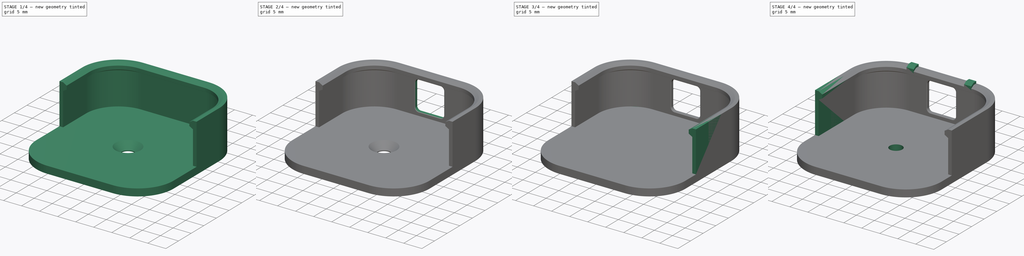
[diagram: build sequence overview — one tinted view per stage of 4, left to right]
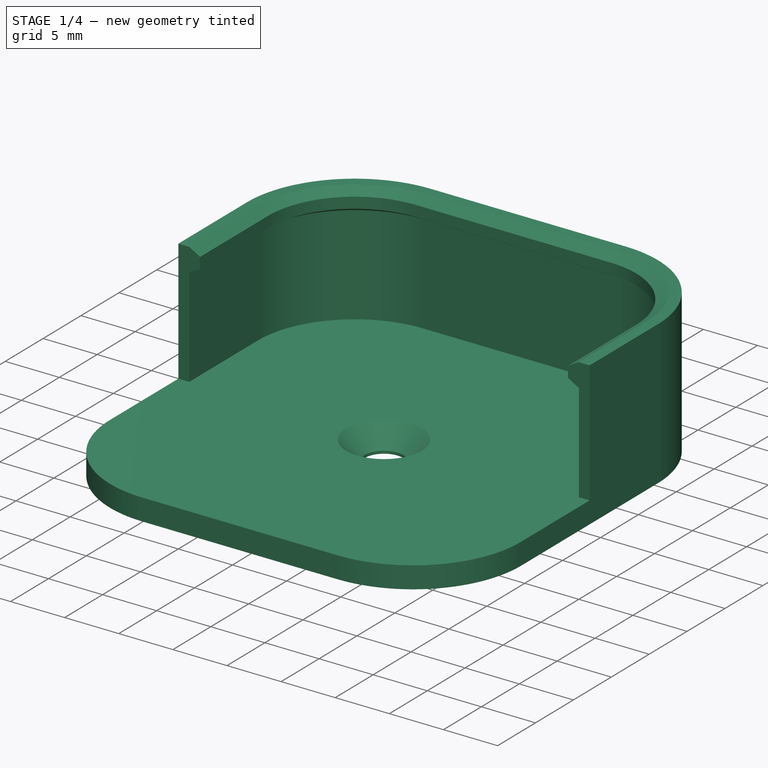
[diagram: stage 1 of 4 — iso view after this stage's code; geometry added in this stage tinted green]
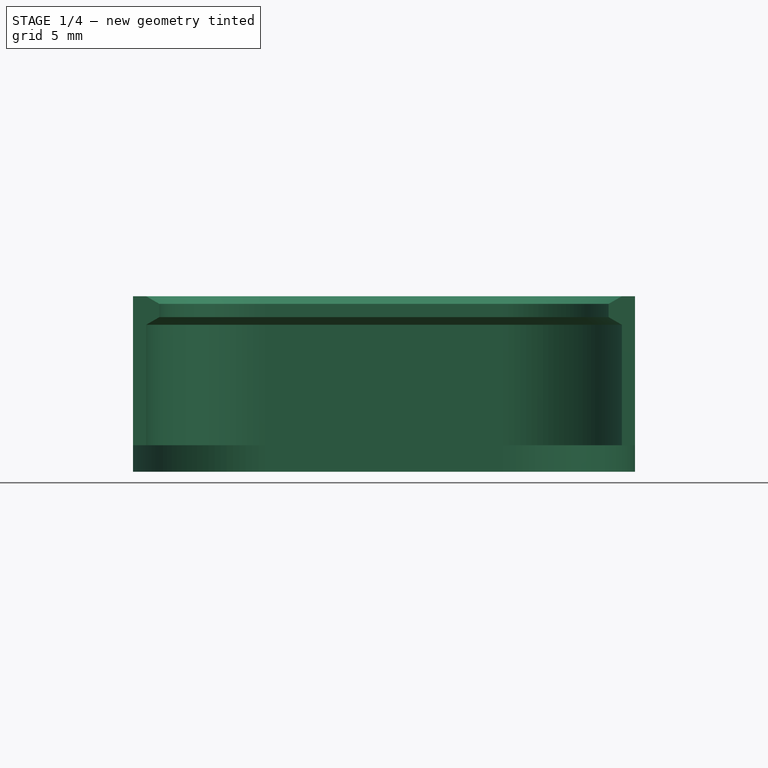
[diagram: stage 1 of 4 — front view after this stage's code; geometry added in this stage tinted green]
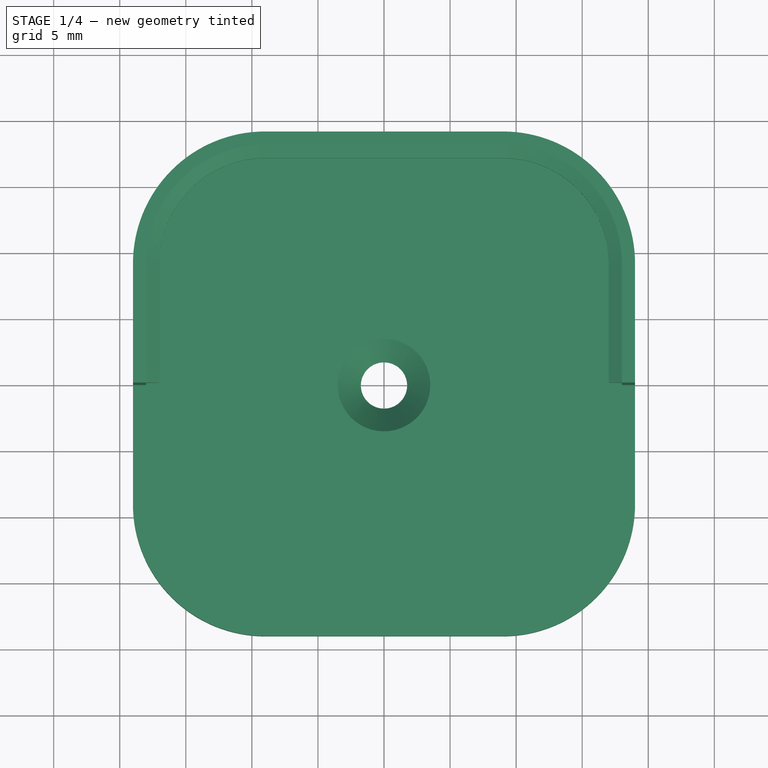
[diagram: stage 1 of 4 — top view after this stage's code; geometry added in this stage tinted green]
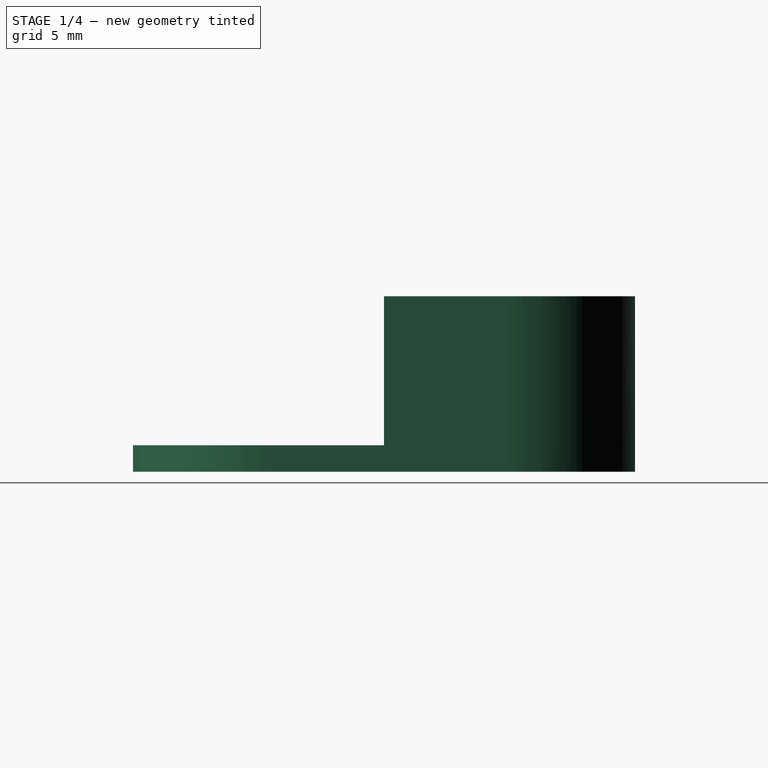
[diagram: stage 1 of 4 — right view after this stage's code; geometry added in this stage tinted green]
FCSTD DOCUMENT  (FreeCAD 0.19R22756 (Git))
Label: mi-temp-sensor-holder
License: All rights reserved
LicenseURL: http://en.wikipedia.org/wiki/All_rights_reserved
objects: Sketcher::SketchObject×9, PartDesign::Pad×4, PartDesign::Fillet×4, PartDesign::Mirrored×2, PartDesign::Hole×2, PartDesign::Body×2, PartDesign::Plane×1, PartDesign::AdditivePipe×1, PartDesign::Pocket×1
note: 38 computed .brp shape members not serialized (recipe doc carries the construction recipe); baked Part::Feature solids carry a one-line shape summary decoded from their .brp

FEATURE [PartDesign::Body] Body
  Group = -> [Sketch,Pad,Fillet,Sketch001,Pad001,Mirrored,Sketch002,Hole,DatumPlane,Sketch003,Pad002,Mirrored001]
  Origin = -> Origin
  Tip = -> Mirrored001
FEATURE [Sketcher::SketchObject] Sketch006
  MapMode = 5
  Support = -> [XY_Plane001]
  expr: Constraints[11] = Constraints[8] / 2
  expr: Constraints[10] = -Constraints[8] / 2
  expr: Constraints[9] = Constraints[8]
  sketch-geometry (4):
    g0: LineSegment StartX=-19 StartY=-19 StartZ=0 EndX=19 EndY=-19 EndZ=0
    g1: LineSegment StartX=19 StartY=-19 StartZ=0 EndX=19 EndY=19 EndZ=0
    g2: LineSegment StartX=19 StartY=19 StartZ=0 EndX=-19 EndY=19 EndZ=0
    g3: LineSegment StartX=-19 StartY=19 StartZ=0 EndX=-19 EndY=-19 EndZ=0
  constraints (12):
    c: Coincident(g0,g1)
    c: Coincident(g1,g2)
    c: Coincident(g2,g3)
    c: Coincident(g3,g0)
    c: Horizontal(g0)
    c: Horizontal(g2)
    c: Vertical(g1)
    c: Vertical(g3)
    c: Distance(g2) = 38
    c: Distance(g1) = 38
    c: DistanceX(g-2,g2) = -19
    c: Distance(g-1,g0) = 19
FEATURE [PartDesign::Pad] Pad005
  Direction = (1,1,1)
  Length = 2
  Length2 = 100
  Profile = -> Sketch006
  Type = 0
FEATURE [PartDesign::Fillet] Fillet001
  Base = -> Pad005 [Edge2,Edge1,Edge5,Edge8]
  BaseFeature = -> Pad005
  Radius = 10
  SupportTransform = false
FEATURE [Sketcher::SketchObject] Sketch004
  ExternalGeometry = -> [Fillet001]
  MapMode = 5
  Placement = pos=(0,0,0) rot=(1,0,0;1.5708rad)
  Support = -> [XZ_Plane001]
  sketch-geometry (7):
    g0: LineSegment StartX=19 StartY=2 StartZ=0 EndX=19 EndY=13.2774 EndZ=0
    g1: LineSegment StartX=19 StartY=13.2774 StartZ=0 EndX=18 EndY=13.2774 EndZ=0
    g2: LineSegment StartX=18 StartY=13.2774 StartZ=0 EndX=17 EndY=12.7 EndZ=0
    g3: LineSegment StartX=17 StartY=12.7 StartZ=0 EndX=17 EndY=11.7 EndZ=0
    g4: LineSegment StartX=17 StartY=11.7 StartZ=0 EndX=18 EndY=11.1226 EndZ=0
    g5: LineSegment StartX=18 StartY=11.1226 StartZ=0 EndX=18 EndY=2 EndZ=0
    g6: LineSegment StartX=18 StartY=2 StartZ=0 EndX=19 EndY=2 EndZ=0
  constraints (20):
    c: Coincident(g0,g-4)
    c: Vertical(g0)
    c: Coincident(g1,g0)
    c: Horizontal(g1)
    c: Coincident(g3,g2)
    c: Vertical(g3)
    c: Coincident(g4,g3)
    c: Coincident(g5,g4)
    c: PointOnObject(g5,g-3)
    c: Vertical(g5)
    c: Coincident(g6,g5)
    c: Coincident(g6,g0)
    c: Distance(g4,g0) = 1
    c: Distance(g3,g-3) = 9.7
    c: Distance(g3) = 1
    c: Angle(g3,g2) = 2.0944
    c: Coincident(g1,g2)
    c: DistanceX(g2,g1) = 1
    c: Equal(g4,g2)
    c: Vertical(g1,g4)
FEATURE [Sketcher::SketchObject] Sketch007
  ExternalGeometry = -> [Fillet001,Sketch004]
  MapMode = 5
  Placement = pos=(0,0,2) rot=(0,0,1;0rad)
  Support = -> [Fillet001]
  sketch-geometry (5):
    g0: LineSegment StartX=19 StartY=-3.6e-15 StartZ=0 EndX=19 EndY=9 EndZ=0
    g1: ArcOfCircle CenterX=9 CenterY=9 CenterZ=0 NormalX=0 NormalY=0 NormalZ=1 AngleXU=0 Radius=10 StartAngle=-9e-16 EndAngle=1.5708
    g2: LineSegment StartX=9 StartY=19 StartZ=0 EndX=-9 EndY=19 EndZ=0
    g3: ArcOfCircle CenterX=-9 CenterY=9 CenterZ=0 NormalX=0 NormalY=0 NormalZ=1 AngleXU=0 Radius=10 StartAngle=1.5708 EndAngle=3.14159
    g4: LineSegment StartX=-19 StartY=9 StartZ=0 EndX=-19 EndY=-3.6e-15 EndZ=0
  constraints (13):
    c: Coincident(g0,g-8)
    c: Coincident(g0,g-4)
    c: Coincident(g1,g-4)
    c: Coincident(g1,g0)
    c: Coincident(g1,g-5)
    c: Coincident(g2,g1)
    c: Coincident(g2,g-6)
    c: Coincident(g3,g-6)
    c: Coincident(g3,g2)
    c: Coincident(g3,g-7)
    c: Coincident(g4,g3)
    c: PointOnObject(g4,g-7)
    c: Horizontal(g4,g0)
FEATURE [PartDesign::AdditivePipe] AdditivePipe
  AuxilleryCurvelinear = true
  AuxillerySpineTangent = false
  BaseFeature = -> Fillet001
  Binormal = (0,0,0)
  Mode = 0
  Profile = -> Sketch004
  Spine = -> Sketch007
  SpineTangent = false
  Transformation = 0
  Transition = 0
FEATURE [Sketcher::SketchObject] Sketch008
  MapMode = 5
  Placement = pos=(0,0,2) rot=(0,0,1;0rad)
  Support = -> [AdditivePipe]
  sketch-geometry (1):
    g0: Circle CenterX=0 CenterY=0 CenterZ=0 NormalX=0 NormalY=0 NormalZ=1 AngleXU=0 Radius=1.5
  constraints (2):
    c: Coincident(g0,g-1)
    c: Diameter(g0) = 3
FEATURE [PartDesign::Hole] Hole001
  BaseFeature = -> AdditivePipe
  Depth = 4.13
  DepthType = 0
  Diameter = 3.5
  DrillPoint = 1
  DrillPointAngle = 118
  HoleCutCountersinkAngle = 90
  HoleCutDepth = 0
  HoleCutDiameter = 7
  HoleCutType = 2
  ModelActualThread = false
  Profile = -> Sketch008
  Tapered = false
  TaperedAngle = 90
  ThreadAngle = 0
  ThreadClass = 0
  ThreadCutOffInner = 0
  ThreadCutOffOuter = 0
  ThreadDirection = 0
  ThreadFit = 0
  ThreadPitch = 0
  ThreadSize = 0
  ThreadType = 0
  Threaded = false
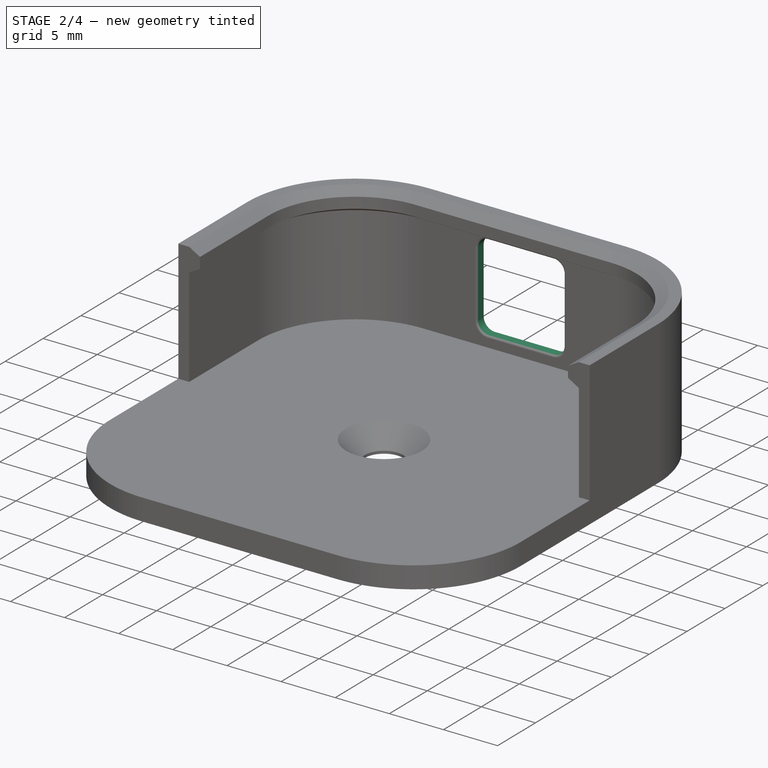
[diagram: stage 2 of 4 — iso view after this stage's code; geometry added in this stage tinted green]
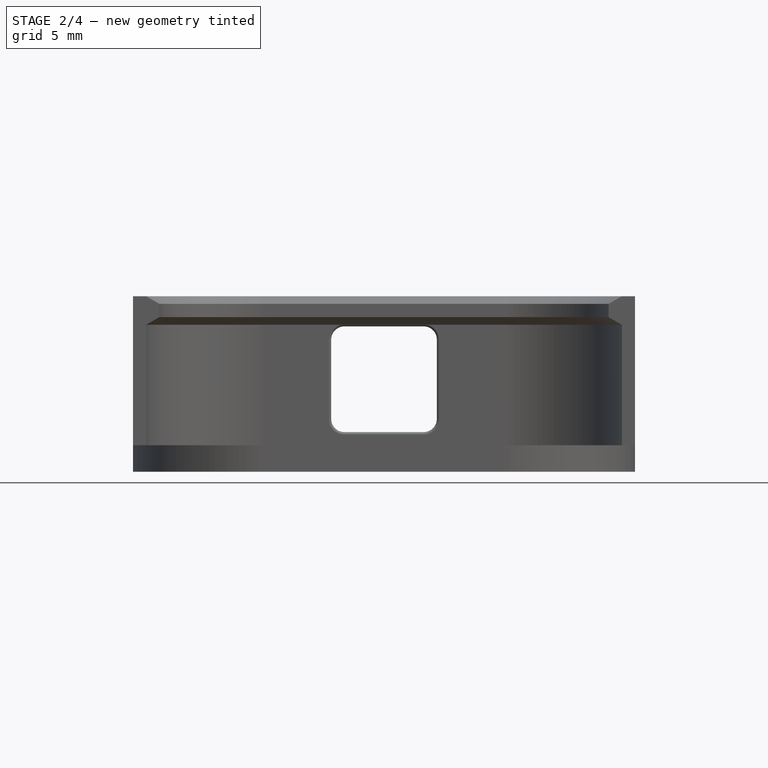
[diagram: stage 2 of 4 — front view after this stage's code; geometry added in this stage tinted green]
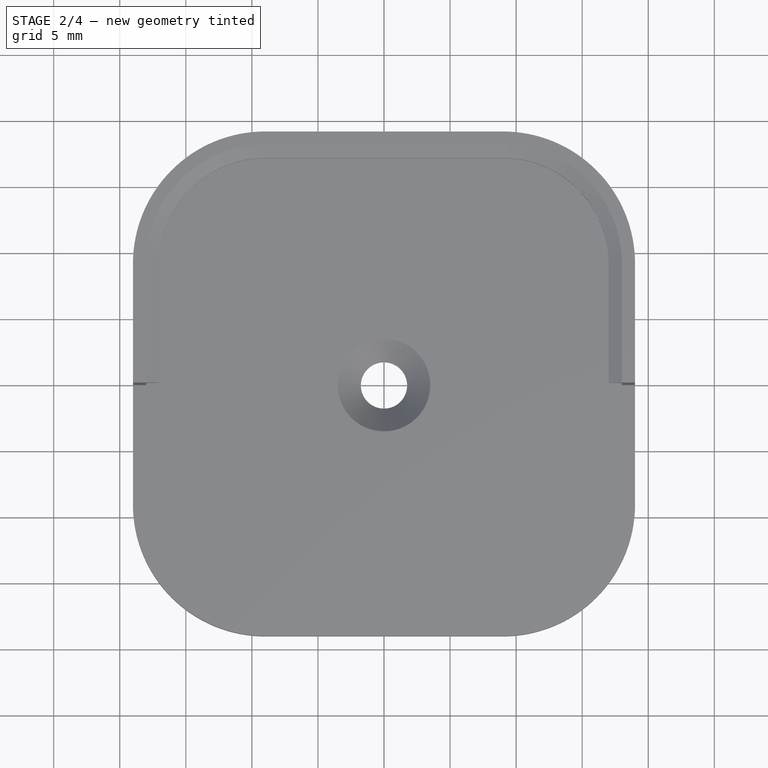
[diagram: stage 2 of 4 — top view after this stage's code; geometry added in this stage tinted green]
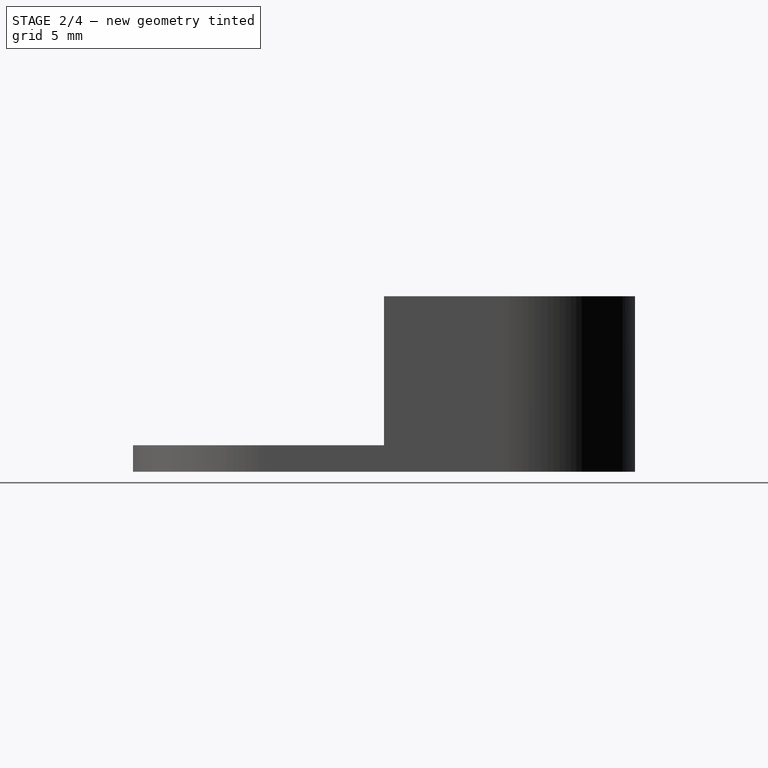
[diagram: stage 2 of 4 — right view after this stage's code; geometry added in this stage tinted green]
FEATURE [Sketcher::SketchObject] Sketch009
  ExternalGeometry = -> [Hole001]
  MapMode = 5
  Placement = pos=(0,18,0) rot=(1,0,0;1.5708rad)
  Support = -> [Hole001]
  expr: Constraints[10] = -Constraints[9] / 2
  sketch-geometry (4):
    g0: LineSegment StartX=-4 StartY=3 StartZ=0 EndX=4 EndY=3 EndZ=0
    g1: LineSegment StartX=4 StartY=3 StartZ=0 EndX=4 EndY=11 EndZ=0
    g2: LineSegment StartX=4 StartY=11 StartZ=0 EndX=-4 EndY=11 EndZ=0
    g3: LineSegment StartX=-4 StartY=11 StartZ=0 EndX=-4 EndY=3 EndZ=0
  constraints (12):
    c: Coincident(g0,g1)
    c: Coincident(g1,g2)
    c: Coincident(g2,g3)
    c: Coincident(g3,g0)
    c: Horizontal(g0)
    c: Horizontal(g2)
    c: Vertical(g1)
    c: Vertical(g3)
    c: Distance(g2) = 8
    c: Distance(g1) = 8
    c: DistanceX(g-2,g0) = -4
    c: Distance(g0,g-6) = 1
FEATURE [PartDesign::Pocket] Pocket
  BaseFeature = -> Hole001
  Length = 0
  Length2 = 100
  Profile = -> Sketch009
  Type = 1
FEATURE [PartDesign::Fillet] Fillet002
  Base = -> Pocket [Edge98,Edge95,Edge97,Edge96]
  BaseFeature = -> Pocket
  Radius = 1
  SupportTransform = false
FEATURE [PartDesign::Fillet] Fillet003
  Base = -> Fillet002 [Edge1,Edge2,Edge4,Edge6,Edge8,Edge7,Edge5,Edge3,Edge21,Edge17,Edge15,Edge19,Edge23,Edge27,Edge28,Edge25]
  BaseFeature = -> Fillet002
  Radius = 0.2
  SupportTransform = false
FEATURE [PartDesign::Body] Body001
  Group = -> [Sketch006,Pad005,Fillet001,Sketch004,Sketch007,AdditivePipe,Sketch008,Hole001,Sketch009,Pocket,Fillet002,Fillet003]
  Origin = -> Origin001
  Tip = -> Fillet003
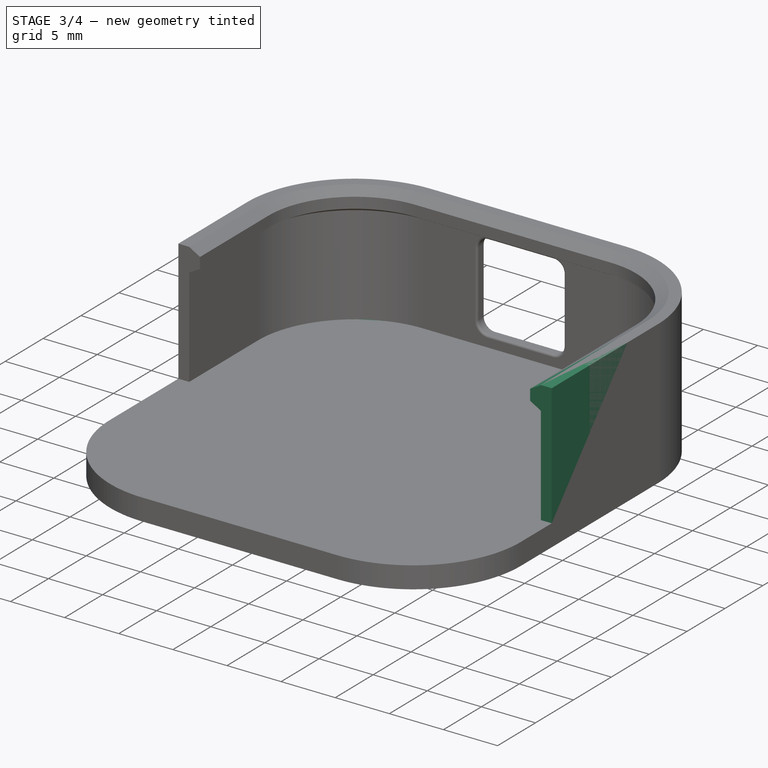
[diagram: stage 3 of 4 — iso view after this stage's code; geometry added in this stage tinted green]
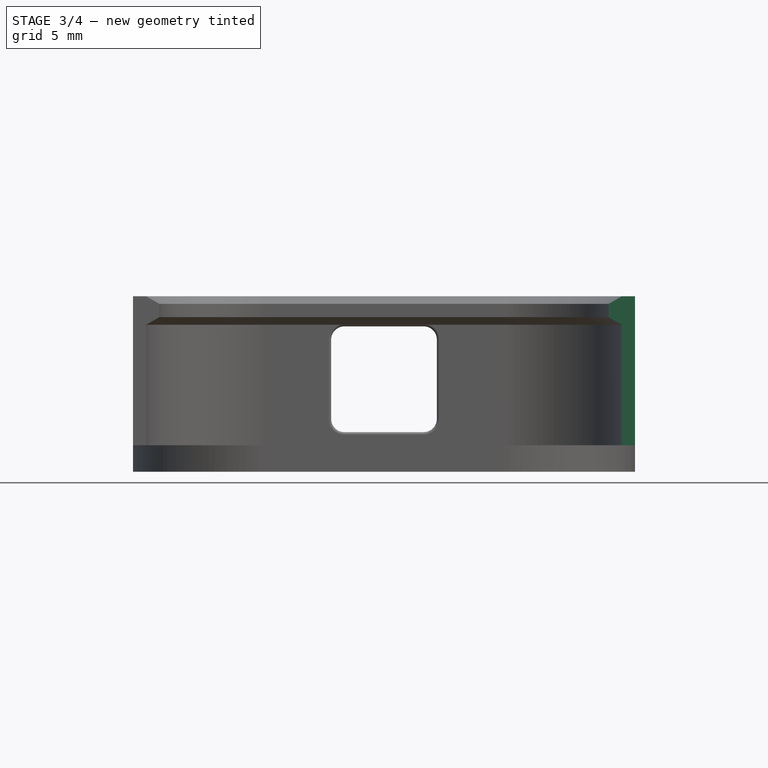
[diagram: stage 3 of 4 — front view after this stage's code; geometry added in this stage tinted green]
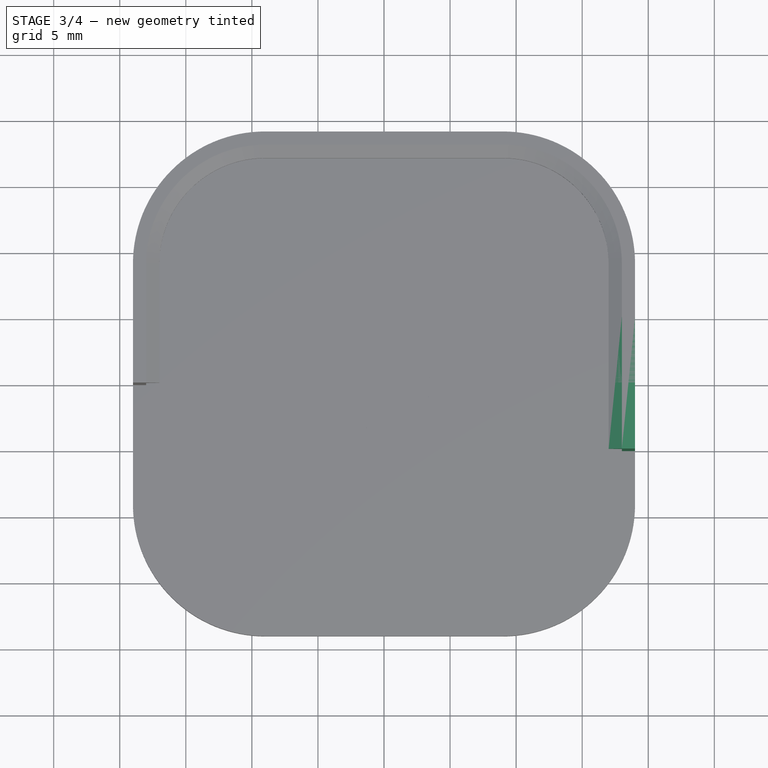
[diagram: stage 3 of 4 — top view after this stage's code; geometry added in this stage tinted green]
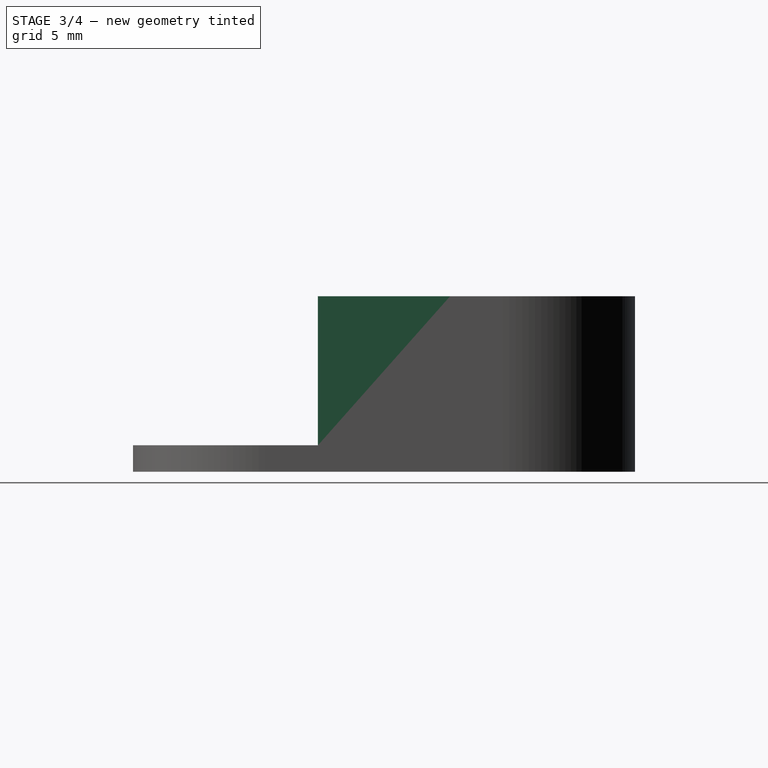
[diagram: stage 3 of 4 — right view after this stage's code; geometry added in this stage tinted green]
FEATURE [Sketcher::SketchObject] Sketch
  MapMode = 5
  Support = -> [XY_Plane]
  expr: Constraints[9] = Constraints[8]
  expr: Constraints[10] = -Constraints[8] / 2
  expr: Constraints[11] = Constraints[8] / 2
  sketch-geometry (4):
    g0: LineSegment StartX=-19 StartY=-19 StartZ=0 EndX=19 EndY=-19 EndZ=0
    g1: LineSegment StartX=19 StartY=-19 StartZ=0 EndX=19 EndY=19 EndZ=0
    g2: LineSegment StartX=19 StartY=19 StartZ=0 EndX=-19 EndY=19 EndZ=0
    g3: LineSegment StartX=-19 StartY=19 StartZ=0 EndX=-19 EndY=-19 EndZ=0
  constraints (12):
    c: Coincident(g0,g1)
    c: Coincident(g1,g2)
    c: Coincident(g2,g3)
    c: Coincident(g3,g0)
    c: Horizontal(g0)
    c: Horizontal(g2)
    c: Vertical(g1)
    c: Vertical(g3)
    c: Distance(g2) = 38
    c: Distance(g1) = 38
    c: DistanceX(g-2,g2) = -19
    c: Distance(g-1,g0) = 19
FEATURE [PartDesign::Pad] Pad
  Direction = (1,1,1)
  Length = 2
  Length2 = 100
  Profile = -> Sketch
  Type = 0
FEATURE [PartDesign::Fillet] Fillet
  Base = -> Pad [Edge2,Edge1,Edge5,Edge8]
  BaseFeature = -> Pad
  Radius = 10
  SupportTransform = false
FEATURE [Sketcher::SketchObject] Sketch001
  ExternalGeometry = -> [Fillet]
  MapMode = 5
  Placement = pos=(0,0,0) rot=(1,0,0;1.5708rad)
  Support = -> [XZ_Plane]
  sketch-geometry (7):
    g0: LineSegment StartX=19 StartY=2 StartZ=0 EndX=19 EndY=13.2774 EndZ=0
    g1: LineSegment StartX=19 StartY=13.2774 StartZ=0 EndX=18 EndY=13.2774 EndZ=0
    g2: LineSegment StartX=18 StartY=13.2774 StartZ=0 EndX=17 EndY=12.7 EndZ=0
    g3: LineSegment StartX=17 StartY=12.7 StartZ=0 EndX=17 EndY=11.7 EndZ=0
    g4: LineSegment StartX=17 StartY=11.7 StartZ=0 EndX=18 EndY=11.1226 EndZ=0
    g5: LineSegment StartX=18 StartY=11.1226 StartZ=0 EndX=18 EndY=2 EndZ=0
    g6: LineSegment StartX=18 StartY=2 StartZ=0 EndX=19 EndY=2 EndZ=0
  constraints (20):
    c: Coincident(g0,g-4)
    c: Vertical(g0)
    c: Coincident(g1,g0)
    c: Horizontal(g1)
    c: Coincident(g3,g2)
    c: Vertical(g3)
    c: Coincident(g4,g3)
    c: Coincident(g5,g4)
    c: PointOnObject(g5,g-3)
    c: Vertical(g5)
    c: Coincident(g6,g5)
    c: Coincident(g6,g0)
    c: Distance(g4,g0) = 1
    c: Distance(g3,g-3) = 9.7
    c: Distance(g3) = 1
    c: Angle(g3,g2) = 2.0944
    c: Coincident(g1,g2)
    c: DistanceX(g2,g1) = 1
    c: Equal(g4,g2)
    c: Vertical(g1,g4)
FEATURE [PartDesign::Pad] Pad001
  BaseFeature = -> Fillet
  Direction = (1,1,1)
  Length = 10
  Length2 = 100
  Midplane = true
  Profile = -> Sketch001
  Type = 0
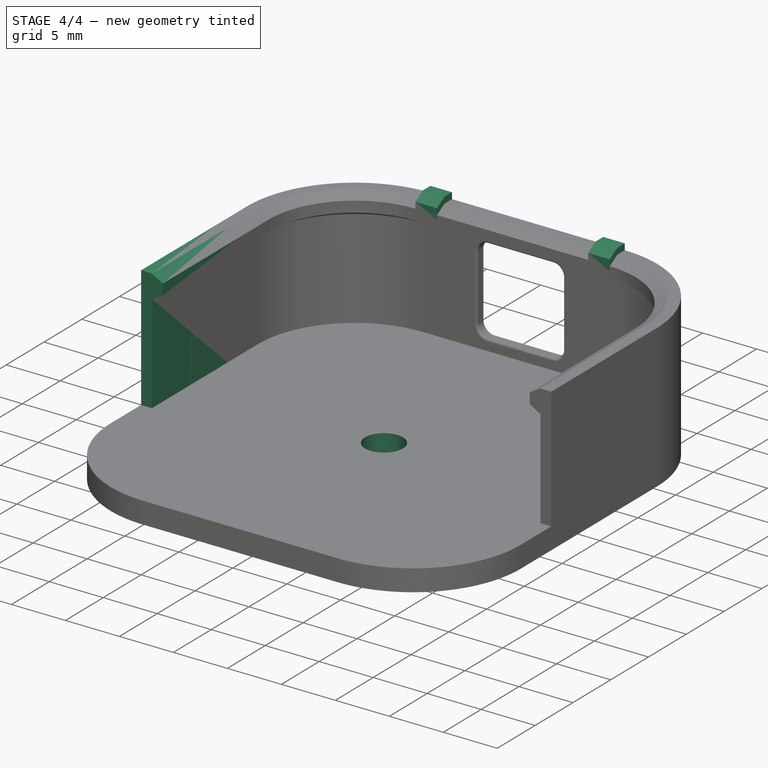
[diagram: stage 4 of 4 — iso view after this stage's code; geometry added in this stage tinted green]
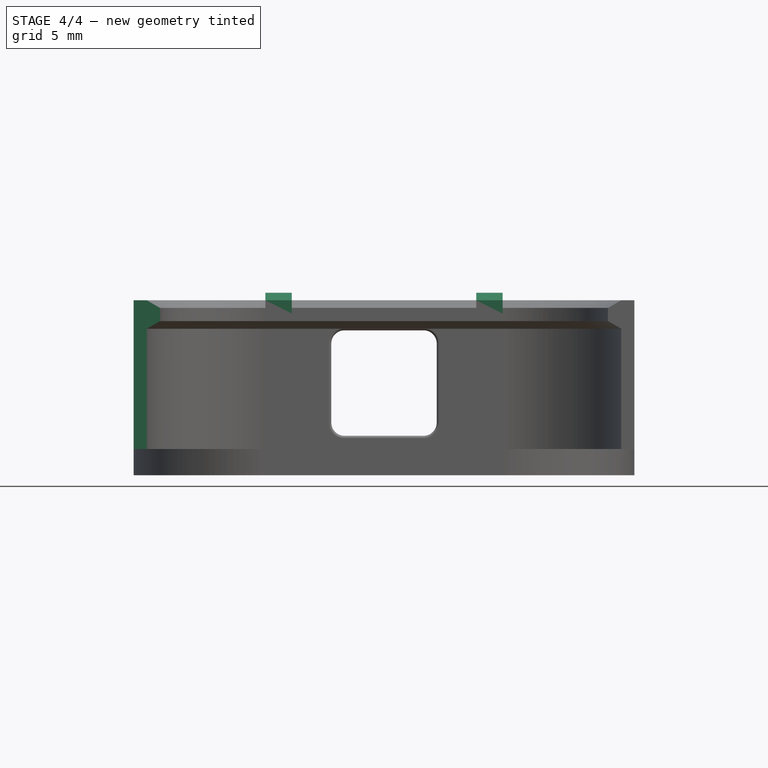
[diagram: stage 4 of 4 — front view after this stage's code; geometry added in this stage tinted green]
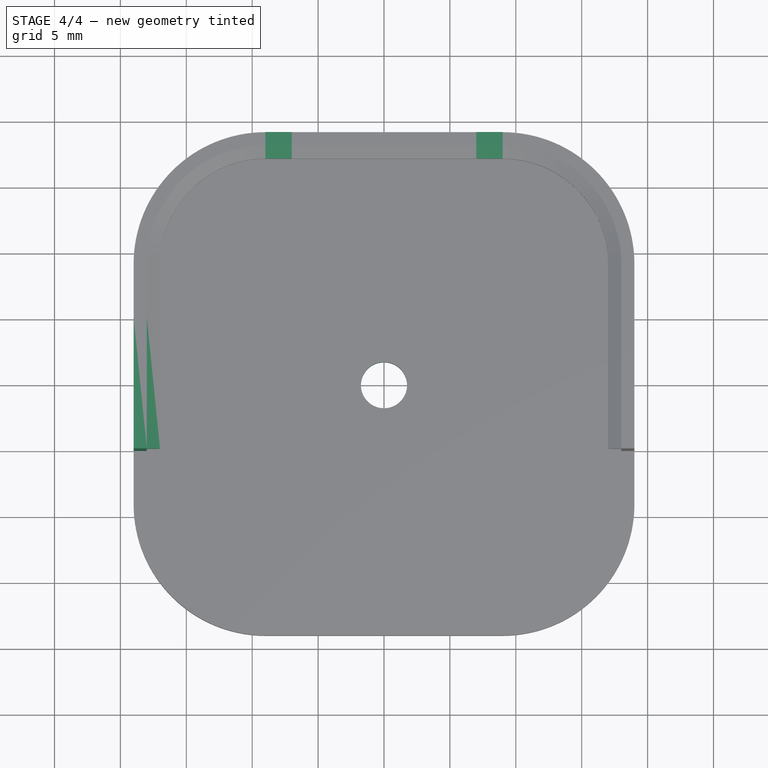
[diagram: stage 4 of 4 — top view after this stage's code; geometry added in this stage tinted green]
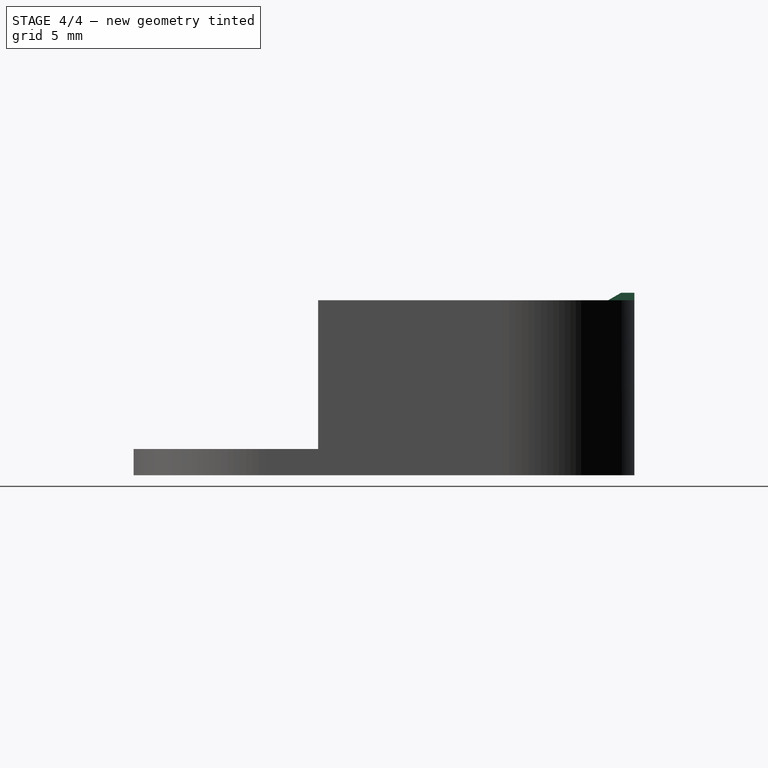
[diagram: stage 4 of 4 — right view after this stage's code; geometry added in this stage tinted green]
FEATURE [PartDesign::Mirrored] Mirrored
  BaseFeature = -> Pad001
  MirrorPlane = -> YZ_Plane
  Originals = -> [Pad001]
FEATURE [Sketcher::SketchObject] Sketch002
  MapMode = 5
  Placement = pos=(0,0,2) rot=(0,0,1;0rad)
  Support = -> [Mirrored]
  sketch-geometry (1):
    g0: Circle CenterX=0 CenterY=0 CenterZ=0 NormalX=0 NormalY=0 NormalZ=1 AngleXU=0 Radius=1.5
  constraints (2):
    c: Coincident(g0,g-1)
    c: Diameter(g0) = 3
FEATURE [PartDesign::Hole] Hole
  BaseFeature = -> Mirrored
  Depth = 4.125
  DepthType = 0
  Diameter = 3.5
  DrillPoint = 1
  DrillPointAngle = 118
  HoleCutCountersinkAngle = 90
  HoleCutDepth = 0
  HoleCutDiameter = 7
  HoleCutType = 0
  ModelActualThread = false
  Profile = -> Sketch002
  Tapered = false
  TaperedAngle = 90
  ThreadAngle = 0
  ThreadClass = 0
  ThreadCutOffInner = 0
  ThreadCutOffOuter = 0
  ThreadDirection = 0
  ThreadFit = 0
  ThreadPitch = 0
  ThreadSize = 0
  ThreadType = 0
  Threaded = false
FEATURE [PartDesign::Plane] DatumPlane
  AttachmentOffset = pos=(0,0,8) rot=(0,0,1;0rad)
  Length = 60
  MapMode = 5
  Placement = pos=(8,-1.8e-15,1.8e-15) rot=(0.57735,0.57735,0.57735;2.0944rad)
  ResizeMode = 0
  Support = -> [YZ_Plane]
  Width = 60
FEATURE [Sketcher::SketchObject] Sketch003
  ExternalGeometry = -> [Hole]
  MapMode = 5
  Placement = pos=(8,-1.8e-15,1.8e-15) rot=(0.57735,0.57735,0.57735;2.0944rad)
  Support = -> [DatumPlane]
  sketch-geometry (7):
    g0: LineSegment StartX=19 StartY=2 StartZ=0 EndX=19 EndY=13.8547 EndZ=0
    g1: LineSegment StartX=19 StartY=13.8547 StartZ=0 EndX=18 EndY=13.8547 EndZ=0
    g2: LineSegment StartX=18 StartY=13.8547 StartZ=0 EndX=17 EndY=13.2774 EndZ=0
    g3: LineSegment StartX=17 StartY=13.2774 StartZ=0 EndX=17 EndY=12.2774 EndZ=0
    g4: LineSegment StartX=17 StartY=12.2774 StartZ=0 EndX=18 EndY=11.7 EndZ=0
    g5: LineSegment StartX=18 StartY=11.7 StartZ=0 EndX=18 EndY=2 EndZ=0
    g6: LineSegment StartX=18 StartY=2 StartZ=0 EndX=19 EndY=2 EndZ=0
  constraints (20):
    c: Coincident(g0,g-4)
    c: Vertical(g0)
    c: Coincident(g1,g0)
    c: Horizontal(g1)
    c: Coincident(g2,g1)
    c: Coincident(g3,g2)
    c: Vertical(g3)
    c: Coincident(g4,g3)
    c: Coincident(g5,g4)
    c: PointOnObject(g5,g-3)
    c: Vertical(g5)
    c: Coincident(g6,g5)
    c: Coincident(g6,g0)
    c: Distance(g5) = 9.7
    c: Distance(g4,g0) = 1
    c: Distance(g3) = 1
    c: DistanceX(g2,g1) = 1
    c: Angle(g3,g2) = 2.0944
    c: Vertical(g4,g1)
    c: Equal(g2,g4)
FEATURE [PartDesign::Pad] Pad002
  BaseFeature = -> Hole
  Direction = (1,1,1)
  Length = 2
  Length2 = 100
  Midplane = true
  Profile = -> Sketch003
  Type = 0
FEATURE [PartDesign::Mirrored] Mirrored001
  BaseFeature = -> Pad002
  MirrorPlane = -> YZ_Plane
  Originals = -> [Pad002]
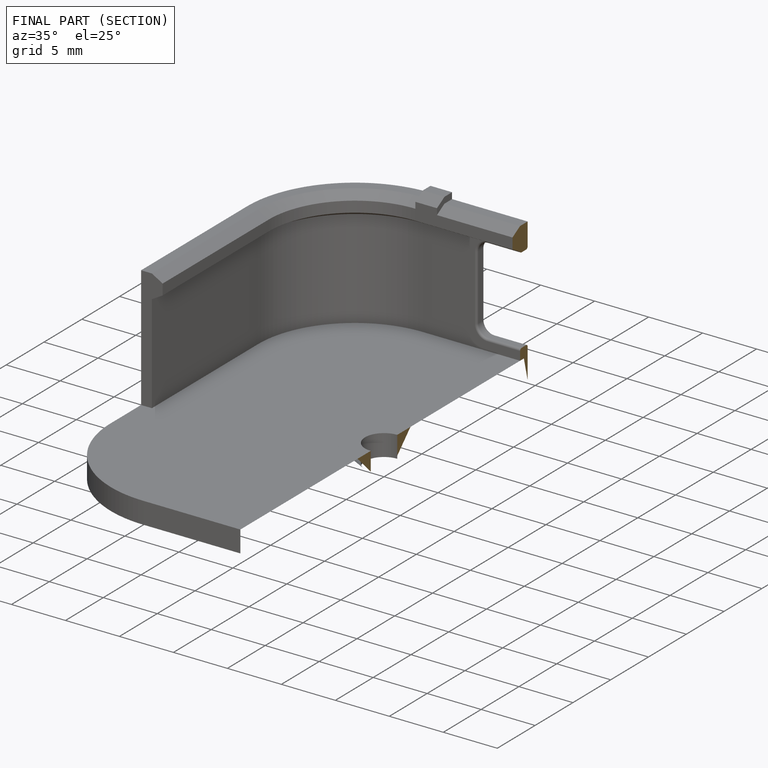
[diagram: finished part — half-section view (interior)]
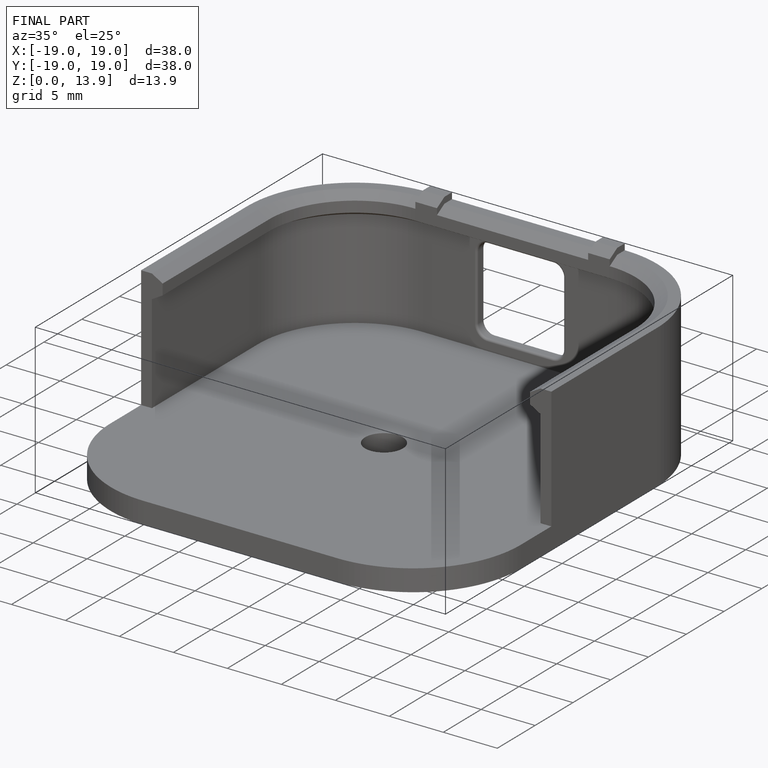
[diagram: finished part — iso view with bounding-box wireframe]
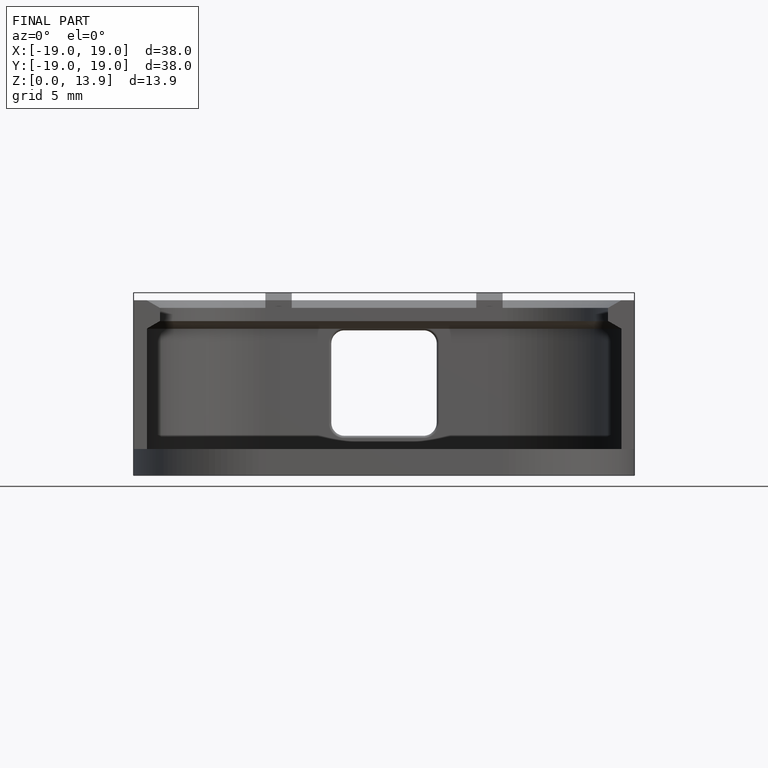
[diagram: finished part — front view with bounding-box wireframe]
